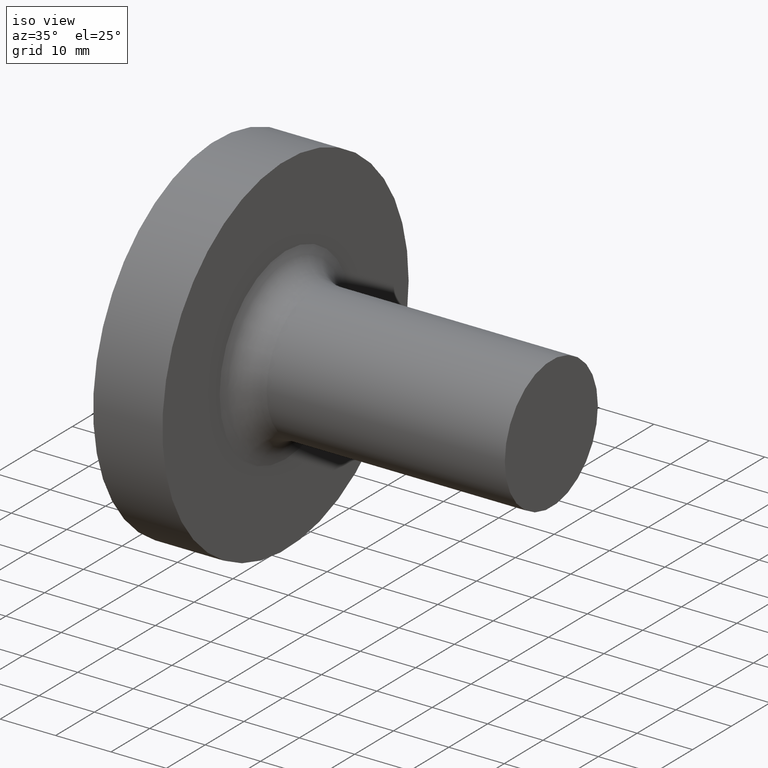
[diagram: clean part render]
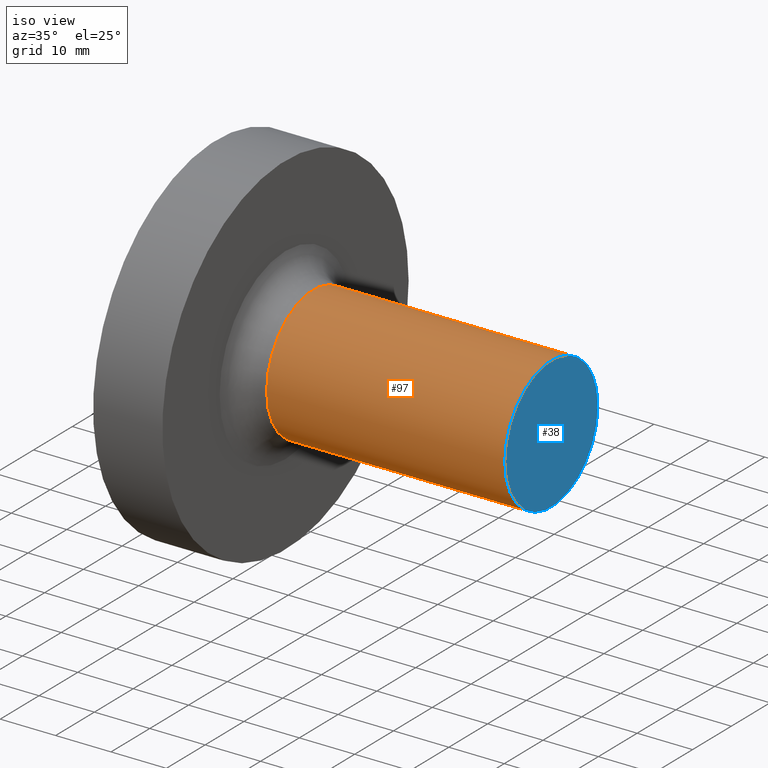
[diagram: same view with the hole feature highlighted: cylindrical wall and planar end face, labeled with their STEP entity ids]
A machine part, iso view. The highlighted faces form one hole feature of diameter 24 mm: the cylindrical wall (entity #97, orange) and its adjacent planar end face (entity #38, blue) — they share a circular edge in the B-rep.
Wall:
#4 = CARTESIAN_POINT ( 'NONE',  ( 60.50000000000000000, 12.00000000000000178, 0.0000000000000000000 ) ) ;
#15 = CIRCLE ( 'NONE', #87, 12.00000000000000000 ) ;
#17 = DIRECTION ( 'NONE',  ( 1.000000000000000000, -7.084733548786341591E-17, -0.0000000000000000000 ) ) ;
#23 = FACE_OUTER_BOUND ( 'NONE', #83, .T. ) ;
#25 = DIRECTION ( 'NONE',  ( 0.0000000000000000000, 1.000000000000000000, 0.0000000000000000000 ) ) ;
#28 = VERTEX_POINT ( 'NONE', #157 ) ;
#41 = VERTEX_POINT ( 'NONE', #4 ) ;
#50 = DIRECTION ( 'NONE',  ( 1.000000000000000000, -7.084733548786341591E-17, -0.0000000000000000000 ) ) ;
#54 = EDGE_LOOP ( 'NONE', ( #181 ) ) ;
#73 = EDGE_CURVE ( 'NONE', #28, #28, #15, .T. ) ;
#83 = EDGE_LOOP ( 'NONE', ( #93 ) ) ;
#87 = AXIS2_PLACEMENT_3D ( 'NONE', #193, #50, #153 ) ;
#92 = AXIS2_PLACEMENT_3D ( 'NONE', #130, #148, #25 ) ;
#93 = ORIENTED_EDGE ( 'NONE', *, *, #73, .T. ) ;
#97 = ADVANCED_FACE ( 'NONE', ( #23, #155 ), #180, .T. ) ;
#110 = CARTESIAN_POINT ( 'NONE',  ( 60.50000000000000000, -4.286263797015735707E-15, 0.0000000000000000000 ) ) ;
#111 = AXIS2_PLACEMENT_3D ( 'NONE', #110, #17, #139 ) ;
#130 = CARTESIAN_POINT ( 'NONE',  ( 60.50000000000000000, -4.286263797015735707E-15, 0.0000000000000000000 ) ) ;
#137 = CIRCLE ( 'NONE', #111, 12.00000000000000533 ) ;
#139 = DIRECTION ( 'NONE',  ( 0.0000000000000000000, 1.000000000000000000, 0.0000000000000000000 ) ) ;
#148 = DIRECTION ( 'NONE',  ( 1.000000000000000000, -7.084733548786341591E-17, -0.0000000000000000000 ) ) ;
#153 = DIRECTION ( 'NONE',  ( 0.0000000000000000000, 1.000000000000000000, 0.0000000000000000000 ) ) ;
#155 = FACE_OUTER_BOUND ( 'NONE', #54, .T. ) ;
#157 = CARTESIAN_POINT ( 'NONE',  ( 17.50000000000000000, 11.99999999999999822, 0.0000000000000000000 ) ) ;
#180 = CYLINDRICAL_SURFACE ( 'NONE', #92, 12.00000000000000355 ) ;
#181 = ORIENTED_EDGE ( 'NONE', *, *, #192, .F. ) ;
#192 = EDGE_CURVE ( 'NONE', #41, #41, #137, .T. ) ;
#193 = CARTESIAN_POINT ( 'NONE',  ( 17.50000000000000000, -1.239828371037609427E-15, 0.0000000000000000000 ) ) ;
End face:
#4 = CARTESIAN_POINT ( 'NONE',  ( 60.50000000000000000, 12.00000000000000178, 0.0000000000000000000 ) ) ;
#17 = DIRECTION ( 'NONE',  ( 1.000000000000000000, -7.084733548786341591E-17, -0.0000000000000000000 ) ) ;
#32 = PLANE ( 'NONE',  #66 ) ;
#34 = DIRECTION ( 'NONE',  ( 7.084733548786341591E-17, 1.000000000000000000, 0.0000000000000000000 ) ) ;
#38 = ADVANCED_FACE ( 'NONE', ( #57 ), #32, .T. ) ;
#41 = VERTEX_POINT ( 'NONE', #4 ) ;
#45 = DIRECTION ( 'NONE',  ( 1.000000000000000000, -7.084733548786341591E-17, -0.0000000000000000000 ) ) ;
#57 = FACE_OUTER_BOUND ( 'NONE', #172, .T. ) ;
#66 = AXIS2_PLACEMENT_3D ( 'NONE', #128, #45, #34 ) ;
#80 = ORIENTED_EDGE ( 'NONE', *, *, #192, .T. ) ;
#110 = CARTESIAN_POINT ( 'NONE',  ( 60.50000000000000000, -4.286263797015735707E-15, 0.0000000000000000000 ) ) ;
#111 = AXIS2_PLACEMENT_3D ( 'NONE', #110, #17, #139 ) ;
#128 = CARTESIAN_POINT ( 'NONE',  ( 60.50000000000000000, 12.00000000000000178, 0.0000000000000000000 ) ) ;
#137 = CIRCLE ( 'NONE', #111, 12.00000000000000533 ) ;
#139 = DIRECTION ( 'NONE',  ( 0.0000000000000000000, 1.000000000000000000, 0.0000000000000000000 ) ) ;
#172 = EDGE_LOOP ( 'NONE', ( #80 ) ) ;
#192 = EDGE_CURVE ( 'NONE', #41, #41, #137, .T. ) ;